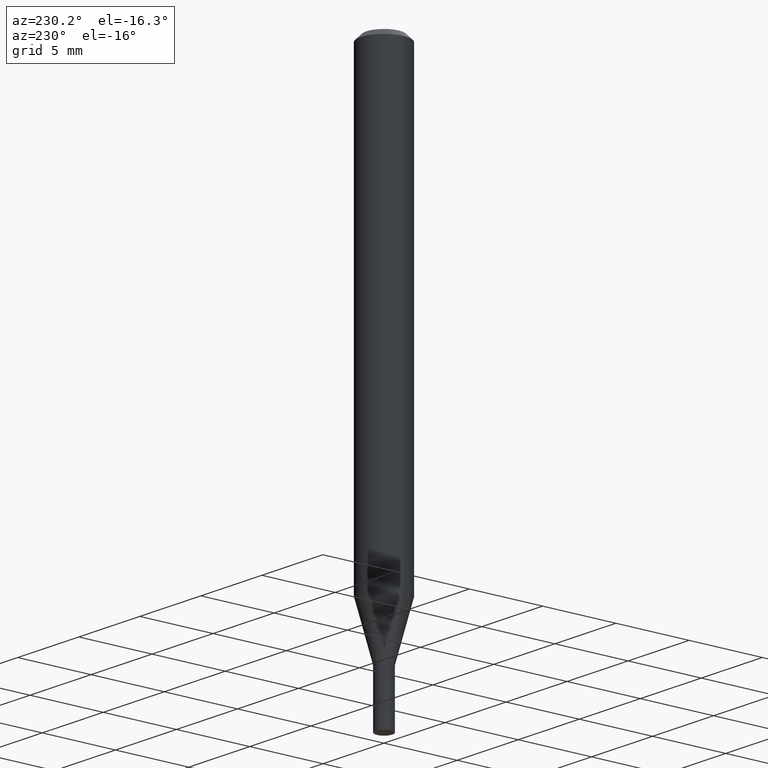
[diagram: clean part render]
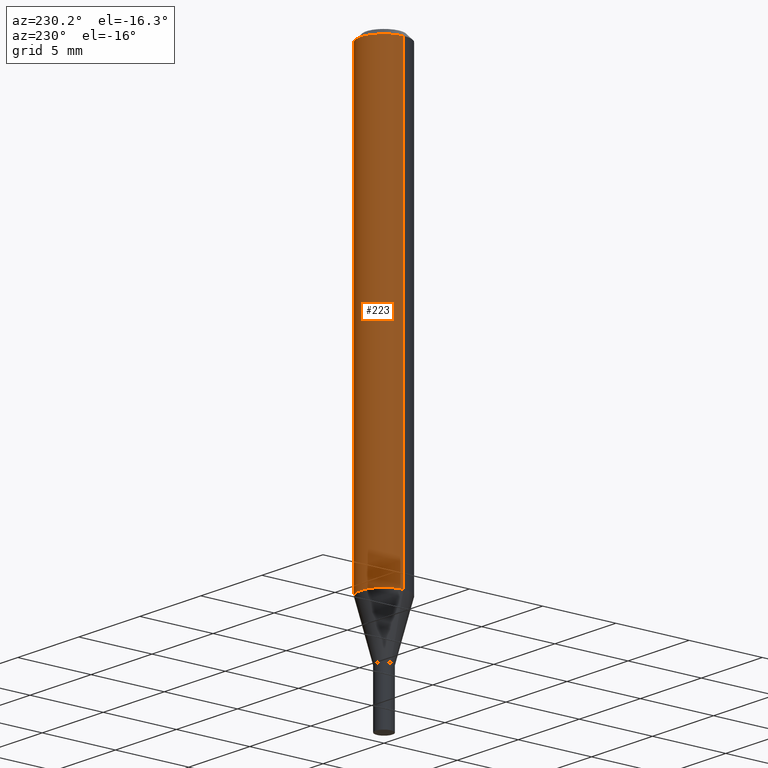
[diagram: same view with one face highlighted and labeled with its STEP entity id]
A machine part, auxiliary view. The second image highlights one B-rep face of the part: STEP entity #223.
In plain terms, the highlighted cylindrical surface (edge-blend (fillet) strip) has radius 1.5875 mm, axis along (-0, 0, 1).
Its self-contained STEP definition (entity closure, byte-faithful):
#1 = CARTESIAN_POINT ( 'NONE',  ( 2.948545679060551070E-29, -4.209741784122813615E-15, -1.205717967697245152 ) ) ;
#10 = EDGE_CURVE ( 'NONE', #427, #78, #17, .T. ) ;
#17 = LINE ( 'NONE', #403, #249 ) ;
#26 = EDGE_LOOP ( 'NONE', ( #408, #440, #57, #310 ) ) ;
#56 = DIRECTION ( 'NONE',  ( -2.445468806185136877E-29, 3.491481338843145188E-15, 1.000000000000000000 ) ) ;
#57 = ORIENTED_EDGE ( 'NONE', *, *, #444, .F. ) ;
#59 = AXIS2_PLACEMENT_3D ( 'NONE', #1, #268, #63 ) ;
#60 = CIRCLE ( 'NONE', #148, 0.06250000000000000000 ) ;
#63 = DIRECTION ( 'NONE',  ( 1.000000000000000000, -6.982962677686270655E-15, 0.000000000000000000 ) ) ;
#64 = LINE ( 'NONE', #461, #294 ) ;
#78 = VERTEX_POINT ( 'NONE', #116 ) ;
#116 = CARTESIAN_POINT ( 'NONE',  ( -0.06250000000000000000, -1.686967792252667731E-15, -0.01499999999999999944 ) ) ;
#148 = AXIS2_PLACEMENT_3D ( 'NONE', #179, #154, #456 ) ;
#153 = EDGE_CURVE ( 'NONE', #375, #427, #358, .T. ) ;
#154 = DIRECTION ( 'NONE',  ( -2.445468806185136597E-29, 3.491481338843145583E-15, 1.000000000000000000 ) ) ;
#162 = EDGE_CURVE ( 'NONE', #375, #286, #64, .T. ) ;
#179 = CARTESIAN_POINT ( 'NONE',  ( 3.668203209277705088E-31, -5.237222008264718399E-17, -0.01499999999999999944 ) ) ;
#211 = DIRECTION ( 'NONE',  ( 1.000000000000000000, -6.982962677686266711E-15, 4.876176775795935793E-29 ) ) ;
#223 = ADVANCED_FACE ( 'NONE', ( #288 ), #442, .T. ) ;
#235 = CARTESIAN_POINT ( 'NONE',  ( -0.06250000000000001388, -3.765652574272750998E-15, -1.205717967697245152 ) ) ;
#249 = VECTOR ( 'NONE', #56, 39.37007874015748143 ) ;
#268 = DIRECTION ( 'NONE',  ( -2.445468806185136597E-29, 3.491481338843145583E-15, 1.000000000000000000 ) ) ;
#281 = CARTESIAN_POINT ( 'NONE',  ( 0.06250000000000001388, -4.646176951478205284E-15, -1.205717967697245152 ) ) ;
#286 = VERTEX_POINT ( 'NONE', #326 ) ;
#288 = FACE_OUTER_BOUND ( 'NONE', #26, .T. ) ;
#294 = VECTOR ( 'NONE', #316, 39.37007874015748143 ) ;
#310 = ORIENTED_EDGE ( 'NONE', *, *, #162, .F. ) ;
#316 = DIRECTION ( 'NONE',  ( -2.445468806185136877E-29, 3.491481338843145188E-15, 1.000000000000000000 ) ) ;
#326 = CARTESIAN_POINT ( 'NONE',  ( 0.06250000000000000000, -4.888073874380388472E-16, -0.01499999999999999944 ) ) ;
#339 = AXIS2_PLACEMENT_3D ( 'NONE', #449, #402, #211 ) ;
#358 = CIRCLE ( 'NONE', #59, 0.06250000000000000000 ) ;
#375 = VERTEX_POINT ( 'NONE', #281 ) ;
#402 = DIRECTION ( 'NONE',  ( -2.445468806185136597E-29, 3.491481338843145583E-15, 1.000000000000000000 ) ) ;
#403 = CARTESIAN_POINT ( 'NONE',  ( -0.06250000000000000000, 4.440892098500626162E-16, -3.074334431409316114E-30 ) ) ;
#408 = ORIENTED_EDGE ( 'NONE', *, *, #153, .T. ) ;
#427 = VERTEX_POINT ( 'NONE', #235 ) ;
#440 = ORIENTED_EDGE ( 'NONE', *, *, #10, .T. ) ;
#442 = CYLINDRICAL_SURFACE ( 'NONE', #339, 0.06250000000000000000 ) ;
#444 = EDGE_CURVE ( 'NONE', #286, #78, #60, .T. ) ;
#449 = CARTESIAN_POINT ( 'NONE',  ( 0.000000000000000000, 0.000000000000000000, 0.000000000000000000 ) ) ;
#456 = DIRECTION ( 'NONE',  ( 1.000000000000000000, -6.982962677686266711E-15, 0.000000000000000000 ) ) ;
#461 = CARTESIAN_POINT ( 'NONE',  ( 0.06250000000000000000, -4.364351673553916694E-16, 3.047610484872459871E-30 ) ) ;